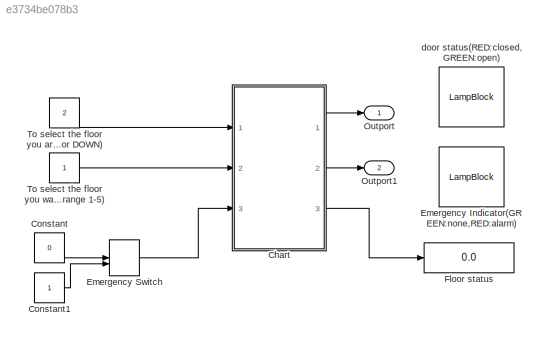
MODEL slx_e3734be078b3
KIND model
CONFIG AbsTol = auto
CONFIG EnableMultiTasking = off
CONFIG FixedStep = auto
CONFIG MaxStep = auto
CONFIG MinStep = auto
CONFIG RelTol = 1e-3
CONFIG SampleTimeConstraint = Unconstrained
CONFIG SolverName = VariableStepAuto
CONFIG StartTime = 0.0
CONFIG StopTime = 10
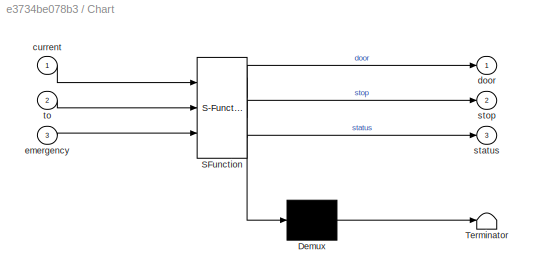
BLOCK [SubSystem] Chart
  ErrorFcn = Stateflow.Translate.translate
  PermitHierarchicalResolution = ExplicitOnly
  Ports = [3, 3]
  RequestExecContextInheritance = off
  SFBlockType = Chart
  TreatAsAtomicUnit = on
BLOCK [Demux] Chart/ Demux 
  Outputs = 1
  Ports = [1, 1]
BLOCK [S-Function] Chart/ SFunction 
  EnableBusSupport = on
  FunctionName = sf_sfun
  PortCounts = [3 4]
  Ports = [3, 4]
  SFcnIsStateOwnerBlock = off
  SFunctionDeploymentMode = off
  Tag = Stateflow S-Function 3
BLOCK [Terminator] Chart/ Terminator 
BLOCK [Inport] Chart/current
BLOCK [Outport] Chart/door
BLOCK [Inport] Chart/emergency
  Port = 3
BLOCK [Outport] Chart/status
  Port = 3
BLOCK [Outport] Chart/stop
  Port = 2
BLOCK [Inport] Chart/to
  Port = 2
BLOCK [Constant] Constant
  Value = 0
BLOCK [Constant] Constant1
BLOCK [LampBlock] Emergency Indicator(GREEN:none,RED:alarm)
BLOCK [ManualSwitch] Emergency Switch
BLOCK [Display] Floor status
  Decimation = 1
  Ports = [1]
BLOCK [Outport] Outport
BLOCK [Outport] Outport1
  Port = 2
BLOCK [Constant] To select the floor you are in.(To decide weather the lift will go UP or DOWN)
  Value = 2
BLOCK [Constant] To select the floor you want to go.(Floor range 1-5)
BLOCK [LampBlock] door status(RED:closed,GREEN:open)
LINE Chart:1 -> Outport:1
LINE Chart:2 -> Outport1:1
LINE Chart:3 -> Floor status:1
LINE Constant1:1 -> Emergency Switch:2
LINE Constant:1 -> Emergency Switch:1
LINE Emergency Switch:1 -> Chart:3
LINE To select the floor you are in.(To decide weather the lift will go UP or DOWN):1 -> Chart:1
LINE To select the floor you want to go.(Floor range 1-5):1 -> Chart:2
CHART Chart states=9 transitions=23
  STATE_LABEL 'LIFT'
  STATE_LABEL 'floor1\nentry:\nstatus=1;\ndoor=1;\nfloor1=0;\nexit:\ndoor=0;\n'
  STATE_LABEL 'control_logic\nentry:\nstatus;\nstop=0;\nalarm(emergency);\nfloor1=0;\nrestingfloor=0;\nduring:\nfloor1=computation(current,to);\n'
  STATE_LABEL 'floor2\nentry:\nstatus=2;\ndoor=1;\nfloor1=0;\nexit:\ndoor=0;\n'
  STATE_LABEL 'floor3\nentry:\nstatus=3;\ndoor=1;\nfloor1=0;\nexit:\ndoor=0;\n'
  STATE_LABEL 'floor4\nentry:\nstatus=4;\ndoor=1;\nfloor1=0;\nexit:\ndoor=0;\n'
  STATE_LABEL 'floor5\nentry:\nstatus=5;\ndoor=1;\nfloor1=0;\nexit:\ndoor=0;\n'
  STATE_LABEL '[floor1==1]'
  STATE_LABEL 'after(9.4,sec)[floor1==0]'
  STATE_LABEL '[floor1==2]'
  STATE_LABEL 'after(9.4,sec)[floor1==0]'
  STATE_LABEL '[floor1==3]'
  STATE_LABEL 'after(9.4,sec)[floor1==0]'
  STATE_LABEL '[floor1==4]'
  STATE_LABEL 'after(9.4,sec)[floor1==0]'
  STATE_LABEL '[floor1==5]'
  STATE_LABEL 'after(9.4,sec)[floor1==0]'
  STATE_LABEL 'floor1\nentry:\nstatus=1;\ndoor=1;\nfloor1=0;\nexit:\ndoor=0;\n'
  STATE_LABEL 'control_logic\nentry:\nstatus;\nstop=0;\nalarm(emergency);\nfloor1=0;\nrestingfloor=0;\nduring:\nfloor1=computation(current,to);\n'
  STATE_LABEL 'floor2\nentry:\nstatus=2;\ndoor=1;\nfloor1=0;\nexit:\ndoor=0;\n'
  STATE_LABEL 'floor3\nentry:\nstatus=3;\ndoor=1;\nfloor1=0;\nexit:\ndoor=0;\n'
  STATE_LABEL 'floor4\nentry:\nstatus=4;\ndoor=1;\nfloor1=0;\nexit:\ndoor=0;\n'
  STATE_LABEL 'floor5\nentry:\nstatus=5;\ndoor=1;\nfloor1=0;\nexit:\ndoor=0;\n'
  STATE_LABEL 'floorx=computation(current1,to1)'
  STATE_LABEL '% current floor and to floor\n\n'
  STATE_LABEL '[current1>to1]'
  STATE_LABEL '{floorx=current1-to1;\ncurrent1=current1-floorx;\nfloorx=current1;}'
  STATE_LABEL '{floorx=to1-current1;\ncurrent1=current1+floorx;\nfloorx=current1;}'
  STATE_LABEL 'alarm(emergency1)'
  STATE_LABEL '% alarm'
  STATE_LABEL '[emergency1==1]'
  STATE_LABEL '{door=1;\nstop=1;}'
CHART  states=0 transitions=0
